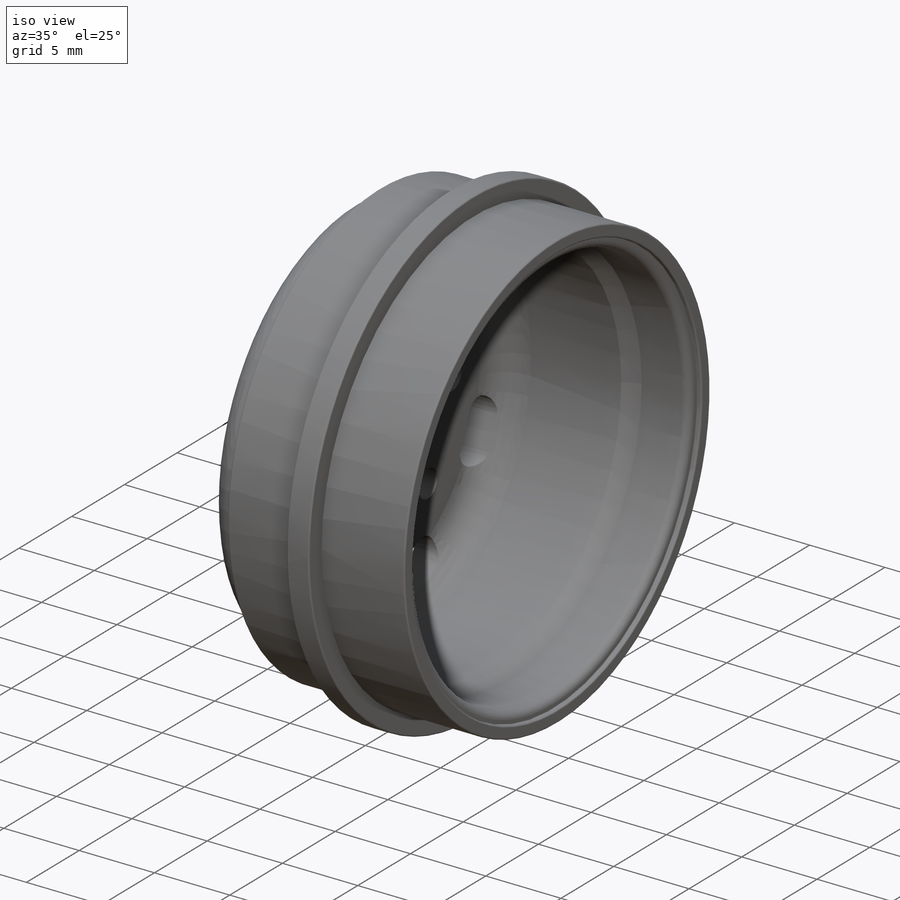
[diagram: iso view]
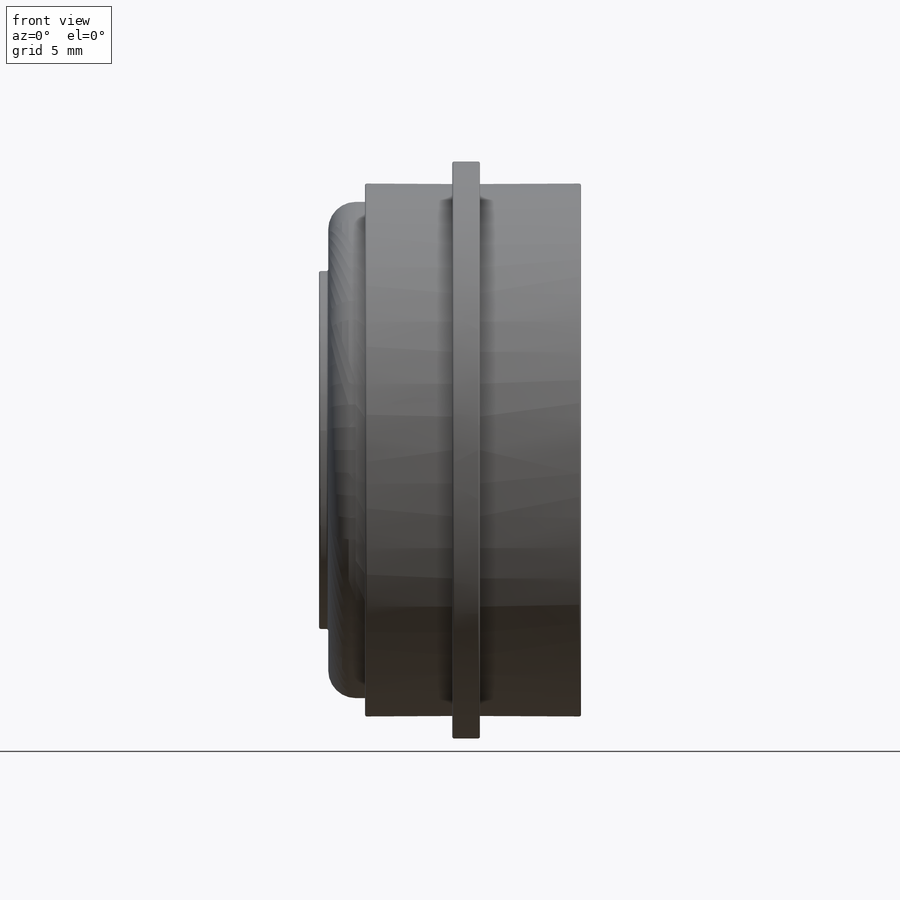
[diagram: front view]
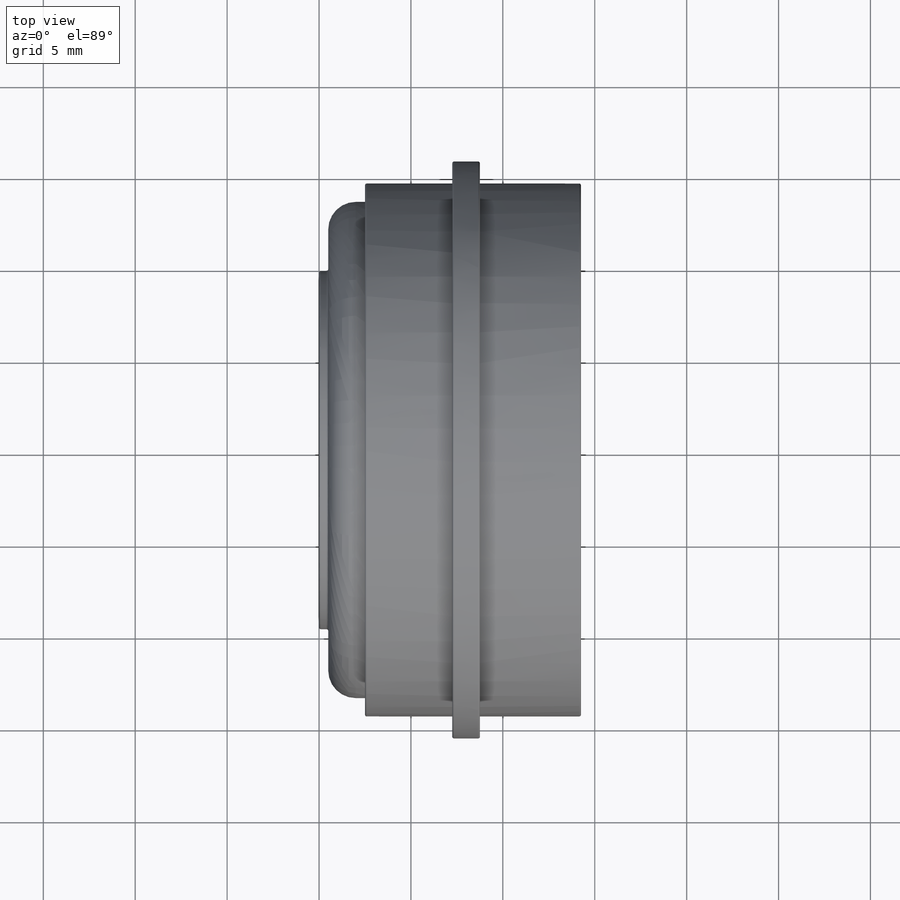
[diagram: top view]
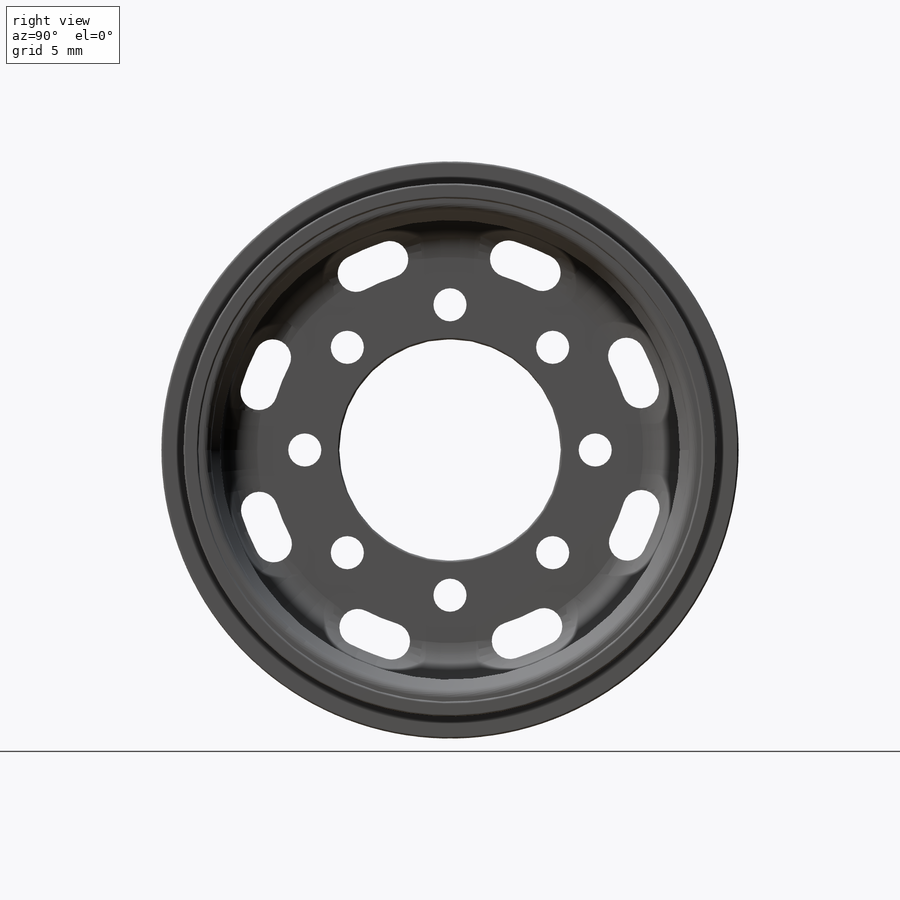
[diagram: right view]
SOLIDWORKS PART (.sldprt)
format: sldprt  version: not decoded by parser v0  size: 466,432 bytes
history: native  units: mm
features: plane x3, sketch x3, cut_extrude x2, pattern_circular x2, material x1, revolve x1, fillet x1 (+9 scaffold rows collapsed)
feature tree (22):
  scaffold x9  (default folders/planes/origin — collapsed)
  material  "Matériau <non spécifié>"
  plane  "Plan de face"
  plane  "Plan de dessus"
  plane  "Plan de droite"
  sketch  "Esquisse1"  dims[c1.D1=~34.592967mm c1.D2=~34.592967mm c1.D14=1.5mm c1.D22=0.45mm c1.D25=~2.53794mm c1.D27=2.0mm c2.D1=6.025mm c2.D2=9.75mm c2.D3=12.0mm c2.D4=14.5mm c2.D5=1.5mm c2.D6=5.5mm c2.D7=5.0mm c2.D8=15.7mm c2.D9=14.25mm c2.D10=13.5mm c2.D11=0.5mm c2.D12=2.25mm c3.D7=2.5mm c3.D12=13.5mm c3.D13=1.5mm c3.D15=14.5mm c3.D16=12.5mm c3.D17=1.75mm c4.D16=10.5mm c4.D17=12.5mm c4.D18=13.0mm c4.D19=0.8mm c4.D20=0.3mm c4.D21=0.75mm c4.D23=3.5mm c4.D24=1.0mm c4.D25=10.5mm c4.D26=1.75mm]
  revolve  "rev_jante"  Angle=360deg
  sketch  "Esquisse2"  dims[D1=7.9mm]
  cut_extrude  "trou_moyeu"  [1 undecoded]
  pattern_circular  "rep_trous_moyeu"  Count=8 Angle=360deg
  sketch  "Esquisse4"  dims[c1.D4=~10.018563mm c1.D5=~11.018563mm c1.D1=12.0mm c2.D1=22.5deg c2.D2=~6.399336mm c3.D2=5.0deg c3.D3=~11.641598mm c4.D3=5.0deg c4.D4=~10.537155deg c5.D4=2.0mm]
  cut_extrude  "rainure_aeration"  [1 undecoded]
  pattern_circular  "Répétition circulaire2"  Count=8 Angle=360deg
  fillet  "conges"  Radius=0.1mm
decode coverage: 7 of 9 modeling features carry decoded parameters
note: ~ marks probable driven/reference dimensions
note: 2 parameter values undecoded
note: suppression state not decoded; provenance and decode notes live in map.json
